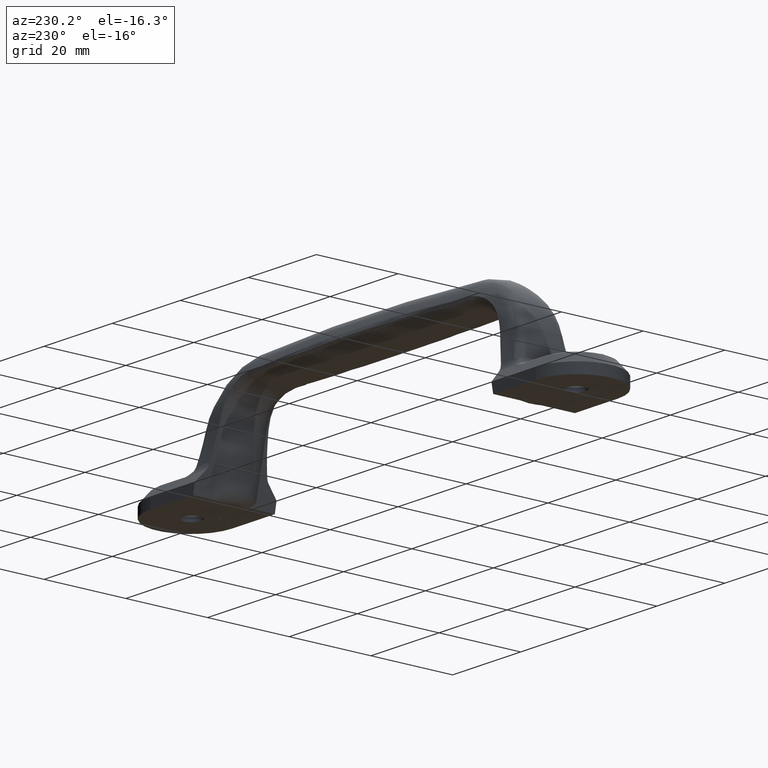
[diagram: clean part render]
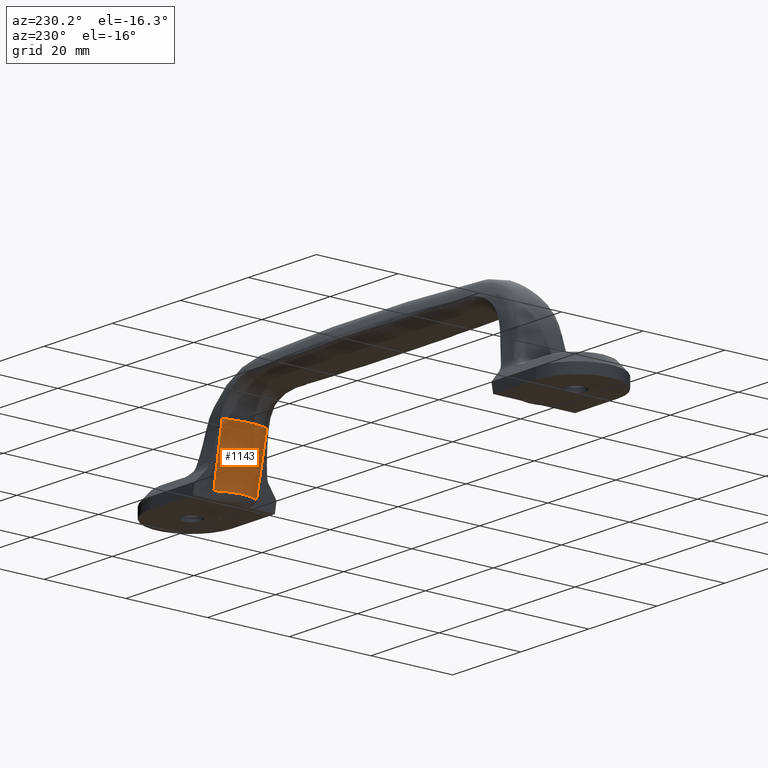
[diagram: same view with one face highlighted and labeled with its STEP entity id]
A machine part, auxiliary view. The second image highlights one B-rep face of the part: STEP entity #1143.
In plain terms, the highlighted face is a freeform B-spline surface patch.
Its self-contained STEP definition (entity closure, byte-faithful):
#181=FACE_OUTER_BOUND('',#254,.T.);
#254=EDGE_LOOP('',(#780,#781,#782,#783));
#355=B_SPLINE_CURVE_WITH_KNOTS('',3,(#3236,#3237,#3238,#3239,#3240,#3241,
#3242),.UNSPECIFIED.,.F.,.F.,(4,3,4),(8.01093508438927E-6,0.5,0.999990628364526),
 .UNSPECIFIED.);
#356=B_SPLINE_CURVE_WITH_KNOTS('',3,(#3277,#3278,#3279,#3280,#3281,#3282),
 .UNSPECIFIED.,.F.,.F.,(4,2,4),(0.000771096117175773,0.690356355406738,
1.38002423598663),.UNSPECIFIED.);
#357=B_SPLINE_CURVE_WITH_KNOTS('',3,(#3284,#3285,#3286,#3287,#3288,#3289),
 .UNSPECIFIED.,.F.,.F.,(4,2,4),(1.63854907265781E-5,0.689570421065763,1.37904183949878),
 .UNSPECIFIED.);
#358=B_SPLINE_CURVE_WITH_KNOTS('',3,(#3290,#3291,#3292,#3293,#3294,#3295),
 .UNSPECIFIED.,.F.,.F.,(4,2,4),(0.00367298671792975,0.5,0.996327013812522),
 .UNSPECIFIED.);
#463=VERTEX_POINT('',#3199);
#465=VERTEX_POINT('',#3223);
#468=VERTEX_POINT('',#3276);
#469=VERTEX_POINT('',#3283);
#589=EDGE_CURVE('',#463,#465,#355,.T.);
#592=EDGE_CURVE('',#468,#463,#356,.T.);
#593=EDGE_CURVE('',#465,#469,#357,.T.);
#594=EDGE_CURVE('',#469,#468,#358,.T.);
#780=ORIENTED_EDGE('',*,*,#592,.T.);
#781=ORIENTED_EDGE('',*,*,#589,.T.);
#782=ORIENTED_EDGE('',*,*,#593,.T.);
#783=ORIENTED_EDGE('',*,*,#594,.T.);
#1103=B_SPLINE_SURFACE_WITH_KNOTS('',3,3,((#3248,#3249,#3250,#3251),(#3252,
#3253,#3254,#3255),(#3256,#3257,#3258,#3259),(#3260,#3261,#3262,#3263),
(#3264,#3265,#3266,#3267),(#3268,#3269,#3270,#3271),(#3272,#3273,#3274,
#3275)),.UNSPECIFIED.,.F.,.F.,.F.,(4,3,4),(4,4),(0.,0.5,1.),(0.,1.),
 .UNSPECIFIED.);
#1143=ADVANCED_FACE('',(#181),#1103,.T.);
#3199=CARTESIAN_POINT('',(43.7472022836311,5.32598027918607,1.67619141363651));
#3223=CARTESIAN_POINT('',(43.7471919590607,-5.0866434927135,1.67619066400922));
#3236=CARTESIAN_POINT('Ctrl Pts',(43.7472022836311,5.32598027918607,1.67619141363651));
#3237=CARTESIAN_POINT('Ctrl Pts',(42.4787965928335,3.8990449364053,1.58409741115849));
#3238=CARTESIAN_POINT('Ctrl Pts',(41.7735694870187,2.00700130868285,1.53981608255425));
#3239=CARTESIAN_POINT('Ctrl Pts',(41.775686844593,0.111255571836058,1.53995672871486));
#3240=CARTESIAN_POINT('Ctrl Pts',(41.7778041964051,-1.78448500584415,1.54009737449271));
#3241=CARTESIAN_POINT('Ctrl Pts',(42.4793461298379,-3.66033191562287,1.58413732608492));
#3242=CARTESIAN_POINT('Ctrl Pts',(43.7471919590607,-5.0866434927135,1.67619066400922));
#3248=CARTESIAN_POINT('Ctrl Pts',(41.029636261616,-5.37104100625238,15.2016116858162));
#3249=CARTESIAN_POINT('Ctrl Pts',(41.963390854038,-5.29143085248881,10.6183883412149));
#3250=CARTESIAN_POINT('Ctrl Pts',(42.8971635486064,-5.20918687343436,6.03521372477833));
#3251=CARTESIAN_POINT('Ctrl Pts',(43.8309268280432,-5.12433213555702,1.45208461970686));
#3252=CARTESIAN_POINT('Ctrl Pts',(39.4749049252399,-4.00427850130969,15.20432354246));
#3253=CARTESIAN_POINT('Ctrl Pts',(40.49583375494,-3.90772857861775,10.6209712165203));
#3254=CARTESIAN_POINT('Ctrl Pts',(41.5167458976669,-3.80941437316641,6.03766192522705));
#3255=CARTESIAN_POINT('Ctrl Pts',(42.537636282537,-3.70935266729766,1.4543969504262));
#3256=CARTESIAN_POINT('Ctrl Pts',(38.5456298097499,-1.9503372598342,15.2058124673922));
#3257=CARTESIAN_POINT('Ctrl Pts',(39.628974055086,-1.89944044288147,10.6223424751669));
#3258=CARTESIAN_POINT('Ctrl Pts',(40.7123087532582,-1.84764694938533,6.03891940869222));
#3259=CARTESIAN_POINT('Ctrl Pts',(41.7956332320054,-1.79496515530672,1.45554657223757));
#3260=CARTESIAN_POINT('Ctrl Pts',(38.5456298097494,0.11966258573864,15.2058124673923));
#3261=CARTESIAN_POINT('Ctrl Pts',(39.6289740550856,0.119662585738641,10.622342475167));
#3262=CARTESIAN_POINT('Ctrl Pts',(40.712308753258,0.11966258573864,6.03891940869233));
#3263=CARTESIAN_POINT('Ctrl Pts',(41.7956332320053,0.119662585738642,1.45554657223768));
#3264=CARTESIAN_POINT('Ctrl Pts',(38.5456298097489,2.18966243131148,15.2058124673924));
#3265=CARTESIAN_POINT('Ctrl Pts',(39.6289740550853,2.13876561435875,10.6223424751671));
#3266=CARTESIAN_POINT('Ctrl Pts',(40.7123087532578,2.08697212086261,6.03891940869245));
#3267=CARTESIAN_POINT('Ctrl Pts',(41.7956332320052,2.03429032678401,1.45554657223779));
#3268=CARTESIAN_POINT('Ctrl Pts',(39.4749049252397,4.24360367278703,15.2043235424605));
#3269=CARTESIAN_POINT('Ctrl Pts',(40.4958337549398,4.14705375009509,10.6209712165208));
#3270=CARTESIAN_POINT('Ctrl Pts',(41.5167458976667,4.04873954464374,6.03766192522751));
#3271=CARTESIAN_POINT('Ctrl Pts',(42.5376362825368,3.94867783877498,1.45439695042665));
#3272=CARTESIAN_POINT('Ctrl Pts',(41.0296362616157,5.61036617772977,15.2016116858169));
#3273=CARTESIAN_POINT('Ctrl Pts',(41.9633908540377,5.53075602396621,10.6183883412155));
#3274=CARTESIAN_POINT('Ctrl Pts',(42.8971635486062,5.44851204491175,6.035213724779));
#3275=CARTESIAN_POINT('Ctrl Pts',(43.8309268280429,5.36365730703441,1.45208461970752));
#3276=CARTESIAN_POINT('',(40.9970561030503,5.5800005347059,15.1939222737155));
#3277=CARTESIAN_POINT('Ctrl Pts',(40.997010230083,5.57999677215846,15.1941162691544));
#3278=CARTESIAN_POINT('Ctrl Pts',(41.4552099875667,5.53929436121935,12.9419925095231));
#3279=CARTESIAN_POINT('Ctrl Pts',(41.9138442581282,5.49777438217005,10.6877330498881));
#3280=CARTESIAN_POINT('Ctrl Pts',(42.8302243125044,5.41318785663647,6.18358118248776));
#3281=CARTESIAN_POINT('Ctrl Pts',(43.28909625628,5.37001709285003,3.92815352167224));
#3282=CARTESIAN_POINT('Ctrl Pts',(43.7472623089102,5.32604772130562,1.67619542668868));
#3283=CARTESIAN_POINT('',(40.997056098292,-5.34067535876706,15.1939222726085));
#3284=CARTESIAN_POINT('Ctrl Pts',(43.7472623277198,-5.08672254802294,1.67619533423635));
#3285=CARTESIAN_POINT('Ctrl Pts',(43.2890962681633,-5.13069192025582,3.92815346326377));
#3286=CARTESIAN_POINT('Ctrl Pts',(42.8302243177861,-5.17386268467233,6.18358115652714));
#3287=CARTESIAN_POINT('Ctrl Pts',(41.9138442576352,-5.25844921073713,10.6877330523114));
#3288=CARTESIAN_POINT('Ctrl Pts',(41.4552099873403,-5.2999691897619,12.9419925106363));
#3289=CARTESIAN_POINT('Ctrl Pts',(40.9970102301194,-5.34067160067772,15.1941162689758));
#3290=CARTESIAN_POINT('Ctrl Pts',(40.997056098292,-5.34067535876706,15.1939222726085));
#3291=CARTESIAN_POINT('Ctrl Pts',(39.5339821174467,-3.96797505453227,14.8488456429712));
#3292=CARTESIAN_POINT('Ctrl Pts',(38.670758895596,-1.92929160409024,14.6764097543375));
#3293=CARTESIAN_POINT('Ctrl Pts',(38.6707588973521,2.16861678393472,14.6764097543349));
#3294=CARTESIAN_POINT('Ctrl Pts',(39.5339821223739,4.20730023314473,14.8488456433349));
#3295=CARTESIAN_POINT('Ctrl Pts',(40.9970561030503,5.5800005347059,15.1939222737155));